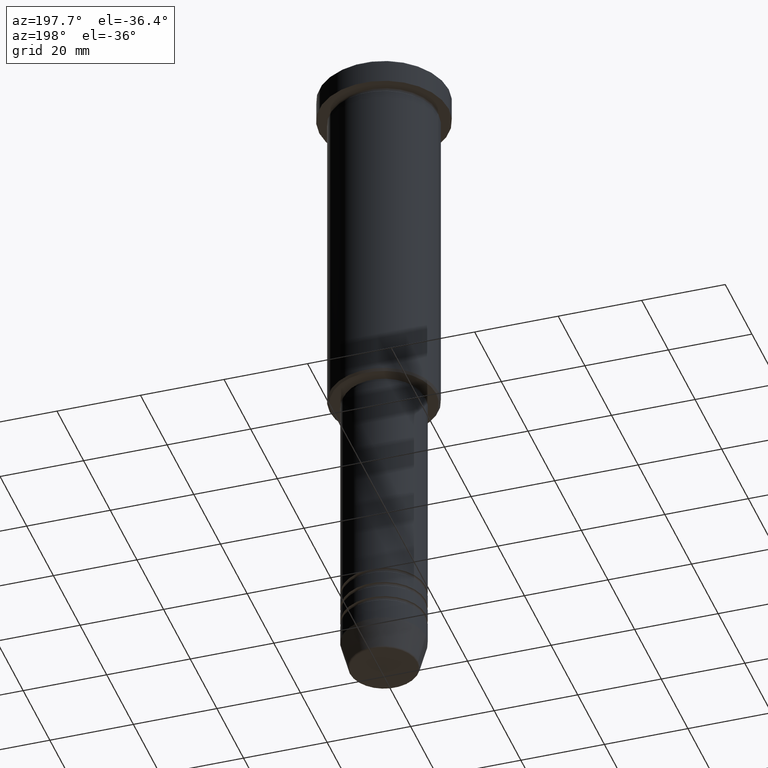
[diagram: clean part render]
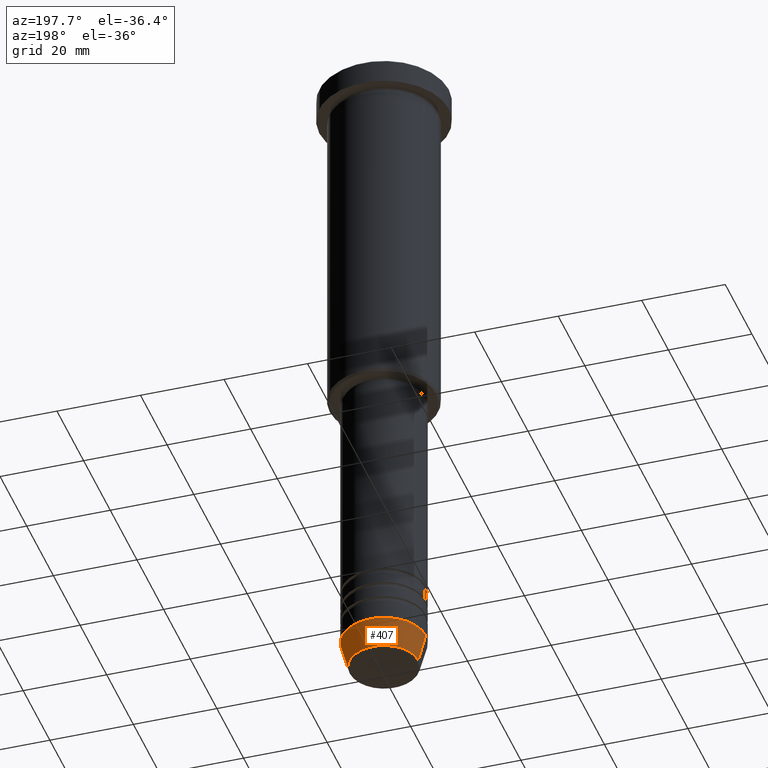
[diagram: same view with one face highlighted and labeled with its STEP entity id]
A machine part, auxiliary view. The second image highlights one B-rep face of the part: STEP entity #407.
In plain terms, the highlighted conical surface has half-angle 15 deg.
Its self-contained STEP definition (entity closure, byte-faithful):
#34 = EDGE_CURVE ( 'NONE', #335, #945, #1123, .T. ) ;
#96 = VERTEX_POINT ( 'NONE', #137 ) ;
#108 = FACE_OUTER_BOUND ( 'NONE', #140, .T. ) ;
#137 = CARTESIAN_POINT ( 'NONE',  ( 10.00000000000000000, 0.000000000000000000, -153.9999999999999716 ) ) ;
#140 = EDGE_LOOP ( 'NONE', ( #983, #776, #1103, #768 ) ) ;
#166 = LINE ( 'NONE', #985, #874 ) ;
#172 = CARTESIAN_POINT ( 'NONE',  ( 0.000000000000000000, 0.000000000000000000, -153.9999999999999716 ) ) ;
#211 = CARTESIAN_POINT ( 'NONE',  ( 0.000000000000000000, 0.000000000000000000, -160.6294095225512422 ) ) ;
#212 = AXIS2_PLACEMENT_3D ( 'NONE', #211, #569, #673 ) ;
#299 = AXIS2_PLACEMENT_3D ( 'NONE', #308, #474, #304 ) ;
#304 = DIRECTION ( 'NONE',  ( 1.000000000000000000, 0.000000000000000000, 0.000000000000000000 ) ) ;
#308 = CARTESIAN_POINT ( 'NONE',  ( 0.000000000000000000, 0.000000000000000000, -153.9999999999999716 ) ) ;
#334 = CIRCLE ( 'NONE', #378, 10.00000000000000000 ) ;
#335 = VERTEX_POINT ( 'NONE', #450 ) ;
#342 = EDGE_CURVE ( 'NONE', #945, #1003, #457, .T. ) ;
#353 = CONICAL_SURFACE ( 'NONE', #299, 10.00000000000000000, 0.2617993877991497964 ) ;
#378 = AXIS2_PLACEMENT_3D ( 'NONE', #172, #713, #900 ) ;
#407 = ADVANCED_FACE ( 'NONE', ( #108 ), #353, .T. ) ;
#450 = CARTESIAN_POINT ( 'NONE',  ( 8.223655072137185940, 0.000000000000000000, -160.6294095225512422 ) ) ;
#457 = LINE ( 'NONE', #818, #642 ) ;
#474 = DIRECTION ( 'NONE',  ( -0.000000000000000000, -0.000000000000000000, 1.000000000000000000 ) ) ;
#517 = EDGE_CURVE ( 'NONE', #335, #96, #166, .T. ) ;
#531 = DIRECTION ( 'NONE',  ( 0.2588190451025210725, 0.000000000000000000, 0.9659258262890680902 ) ) ;
#549 = DIRECTION ( 'NONE',  ( -0.2588190451025210725, 3.169619151431769255E-17, 0.9659258262890680902 ) ) ;
#569 = DIRECTION ( 'NONE',  ( -0.000000000000000000, -0.000000000000000000, 1.000000000000000000 ) ) ;
#620 = CARTESIAN_POINT ( 'NONE',  ( -8.223655072137185940, 1.115877042642911659E-15, -160.6294095225512422 ) ) ;
#642 = VECTOR ( 'NONE', #549, 1000.000000000000114 ) ;
#673 = DIRECTION ( 'NONE',  ( 1.000000000000000000, 0.000000000000000000, 0.000000000000000000 ) ) ;
#713 = DIRECTION ( 'NONE',  ( -0.000000000000000000, -0.000000000000000000, 1.000000000000000000 ) ) ;
#768 = ORIENTED_EDGE ( 'NONE', *, *, #517, .F. ) ;
#776 = ORIENTED_EDGE ( 'NONE', *, *, #342, .T. ) ;
#818 = CARTESIAN_POINT ( 'NONE',  ( -10.00000000000000000, 1.224646799147353256E-15, -153.9999999999999716 ) ) ;
#874 = VECTOR ( 'NONE', #531, 1000.000000000000114 ) ;
#900 = DIRECTION ( 'NONE',  ( 1.000000000000000000, 0.000000000000000000, 0.000000000000000000 ) ) ;
#945 = VERTEX_POINT ( 'NONE', #620 ) ;
#983 = ORIENTED_EDGE ( 'NONE', *, *, #34, .T. ) ;
#985 = CARTESIAN_POINT ( 'NONE',  ( 10.00000000000000000, 0.000000000000000000, -153.9999999999999716 ) ) ;
#999 = CARTESIAN_POINT ( 'NONE',  ( -10.00000000000000000, 1.224646799147353256E-15, -153.9999999999999716 ) ) ;
#1003 = VERTEX_POINT ( 'NONE', #999 ) ;
#1045 = EDGE_CURVE ( 'NONE', #96, #1003, #334, .T. ) ;
#1103 = ORIENTED_EDGE ( 'NONE', *, *, #1045, .F. ) ;
#1123 = CIRCLE ( 'NONE', #212, 8.223655072137185940 ) ;